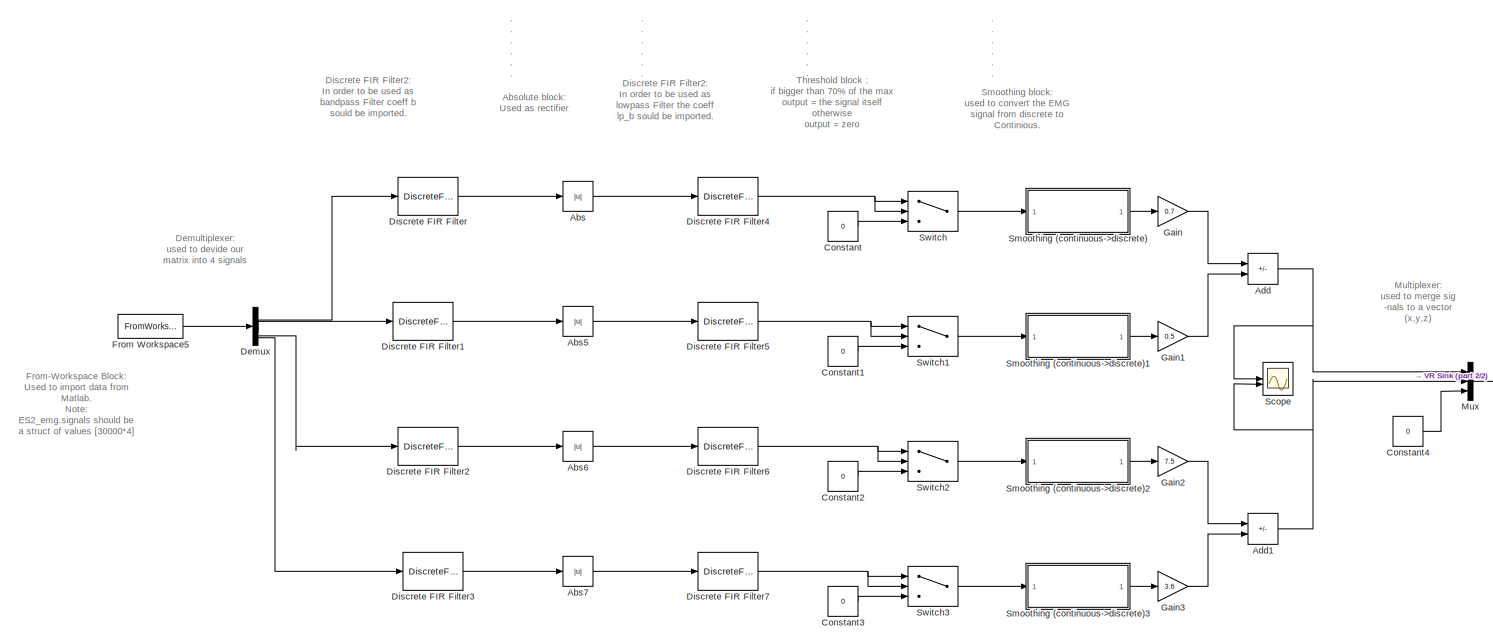
[diagram: root canvas - part 1/2, most of the canvas]
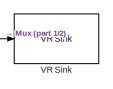
[diagram: root canvas - part 2/2, middle right region]
MODEL slx_cad3455d4116
KIND model
CONFIG AbsTol = auto
CONFIG EnableMultiTasking = off
CONFIG FixedStep = auto
CONFIG MaxStep = auto
CONFIG MinStep = auto
CONFIG RelTol = 1e-3
CONFIG SampleTimeConstraint = Unconstrained
CONFIG SolverName = VariableStepAuto
CONFIG StartTime = 0.0
CONFIG StopTime = 30.0
BLOCK [Abs] Abs
  OutDataTypeStr = double
  SaturateOnIntegerOverflow = off
  ZeroCross = off
BLOCK [Abs] Abs5
  OutDataTypeStr = double
  SaturateOnIntegerOverflow = off
  ZeroCross = off
BLOCK [Abs] Abs6
  OutDataTypeStr = double
  SaturateOnIntegerOverflow = off
  ZeroCross = off
BLOCK [Abs] Abs7
  OutDataTypeStr = double
  SaturateOnIntegerOverflow = off
  ZeroCross = off
BLOCK [Sum] Add
  IconShape = rectangular
  Inputs = +-
BLOCK [Sum] Add1
  IconShape = rectangular
  Inputs = +-
BLOCK [Constant] Constant
  Value = 0
BLOCK [Constant] Constant1
  Value = 0
BLOCK [Constant] Constant2
  Value = 0
BLOCK [Constant] Constant3
  Value = 0
BLOCK [Constant] Constant4
  Value = 0
BLOCK [Demux] Demux
BLOCK [DiscreteFir] Discrete FIR Filter
  Coefficients = b
  InputPortMap = u0
  OutputPortMap = o0
  SampleTime = 1/1000
BLOCK [DiscreteFir] Discrete FIR Filter1
  Coefficients = b
  InputPortMap = u0
  OutputPortMap = o0
  SampleTime = 1/1000
BLOCK [DiscreteFir] Discrete FIR Filter2
  Coefficients = b
  InputPortMap = u0
  OutputPortMap = o0
  SampleTime = 1/1000
BLOCK [DiscreteFir] Discrete FIR Filter3
  Coefficients = b
  InputPortMap = u0
  OutputPortMap = o0
  SampleTime = 1/1000
BLOCK [DiscreteFir] Discrete FIR Filter4
  Coefficients = lp_b
  InputPortMap = u0
  OutputPortMap = o0
  SampleTime = 1/1000
BLOCK [DiscreteFir] Discrete FIR Filter5
  Coefficients = lp_b
  InputPortMap = u0
  OutputPortMap = o0
  SampleTime = 1/1000
BLOCK [DiscreteFir] Discrete FIR Filter6
  Coefficients = lp_b
  InputPortMap = u0
  OutputPortMap = o0
  SampleTime = 1/1000
BLOCK [DiscreteFir] Discrete FIR Filter7
  Coefficients = lp_b
  InputPortMap = u0
  OutputPortMap = o0
  SampleTime = 1/1000
BLOCK [FromWorkspace] From Workspace5
  SampleTime = 1/1000
  VariableName = ES2_emg
BLOCK [Gain] Gain
  Gain = 0.7
BLOCK [Gain] Gain1
  Gain = 0.5
BLOCK [Gain] Gain2
  Gain = 7.5
BLOCK [Gain] Gain3
  Gain = 3.6
BLOCK [Mux] Mux
  DisplayOption = bar
  Inputs = 3
BLOCK [Scope] Scope
  Floating = off
  NumInputPorts = 2
  ScopeSpecificationString = Simulink.scopes.TimeScopeBlockCfg('CurrentConfiguration', extmgr.ConfigurationSet(extmgr.Configuration('Core','General UI',true),extmgr.Configuration('Core','Source UI',true),extmgr.Configuration('Sources','WiredSimulink',true),extmgr.Configuration('Visuals','Time Domain',true,'SerializedDisplays',{struct('MinYLimReal','-0.14234','MaxYLimReal','0.13391','YLabelReal','','MinYLimMag','0.00000','MaxY...<+2010ch>
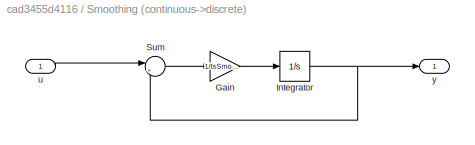
BLOCK [SubSystem] Smoothing (continuous->discrete)
BLOCK [Gain] Smoothing (continuous->discrete)/Gain
  Gain = 1/tsSmoothing
BLOCK [Integrator] Smoothing (continuous->discrete)/Integrator
  InitialCondition = smoothing0
BLOCK [Sum] Smoothing (continuous->discrete)/Sum
  Inputs = |+-
BLOCK [Inport] Smoothing (continuous->discrete)/u
BLOCK [Outport] Smoothing (continuous->discrete)/y
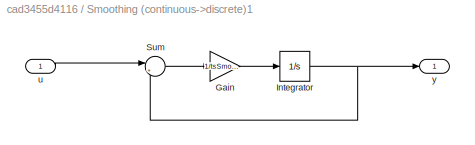
BLOCK [SubSystem] Smoothing (continuous->discrete)1
BLOCK [Gain] Smoothing (continuous->discrete)1/Gain
  Gain = 1/tsSmoothing
BLOCK [Integrator] Smoothing (continuous->discrete)1/Integrator
  InitialCondition = smoothing0
BLOCK [Sum] Smoothing (continuous->discrete)1/Sum
  Inputs = |+-
BLOCK [Inport] Smoothing (continuous->discrete)1/u
BLOCK [Outport] Smoothing (continuous->discrete)1/y
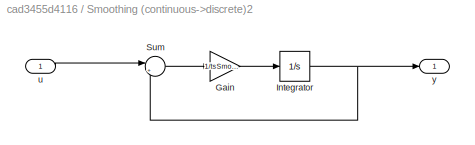
BLOCK [SubSystem] Smoothing (continuous->discrete)2
BLOCK [Gain] Smoothing (continuous->discrete)2/Gain
  Gain = 1/tsSmoothing
BLOCK [Integrator] Smoothing (continuous->discrete)2/Integrator
  InitialCondition = smoothing0
BLOCK [Sum] Smoothing (continuous->discrete)2/Sum
  Inputs = |+-
BLOCK [Inport] Smoothing (continuous->discrete)2/u
BLOCK [Outport] Smoothing (continuous->discrete)2/y
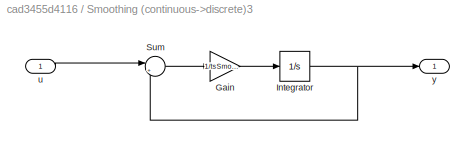
BLOCK [SubSystem] Smoothing (continuous->discrete)3
BLOCK [Gain] Smoothing (continuous->discrete)3/Gain
  Gain = 1/tsSmoothing
BLOCK [Integrator] Smoothing (continuous->discrete)3/Integrator
  InitialCondition = smoothing0
BLOCK [Sum] Smoothing (continuous->discrete)3/Sum
  Inputs = |+-
BLOCK [Inport] Smoothing (continuous->discrete)3/u
BLOCK [Outport] Smoothing (continuous->discrete)3/y
BLOCK [Switch] Switch
  Criteria = u2 > Threshold
  InputSameDT = off
  SaturateOnIntegerOverflow = off
  Threshold = 5e-4
BLOCK [Switch] Switch1
  Criteria = u2 > Threshold
  InputSameDT = off
  SaturateOnIntegerOverflow = off
  Threshold = 5e-4
BLOCK [Switch] Switch2
  Criteria = u2 > Threshold
  InputSameDT = off
  SaturateOnIntegerOverflow = off
  Threshold = 0.2
BLOCK [Switch] Switch3
  Criteria = u2 > Threshold
  InputSameDT = off
  SaturateOnIntegerOverflow = off
  Threshold = 0.08
BLOCK [Reference] VR Sink  REF=vrlib/VR Sink
  InstantiateOnLoad = on
  SourceBlock = vrlib/VR Sink
  SourceType = Virtual Reality Sink
ANNOTATION (root): . . . . . . . . . . . . . . . . . . . . . . . . . . . . . . . . . . . . . . . . . . . . . . .
ANNOTATION (root): Absolute block: Used as rectifier
ANNOTATION (root): Demultiplexer: used to devide our matrix into 4 signals
ANNOTATION (root): Discrete FIR Filter2: In order to be used as bandpass Filter coeff b sould be imported.
ANNOTATION (root): Discrete FIR Filter2: In order to be used as lowpass Filter the coeff lp_b sould be imported.
ANNOTATION (root): From-Workspace Block: Used to import data from Matlab. Note: ES2_emg.signals should be a struct of values [30000*4]
ANNOTATION (root): Multiplexer: used to merge sig -nals to a vector (x,y,z)
ANNOTATION (root): Smoothing block: used to convert the EMG signal from discrete to Continious.
ANNOTATION (root): Threshold block : if bigger than 70% of the max output = the signal itself otherwise output = zero
LINE Abs5:1 -> Discrete FIR Filter5:1
LINE Abs6:1 -> Discrete FIR Filter6:1
LINE Abs7:1 -> Discrete FIR Filter7:1
LINE Abs:1 -> Discrete FIR Filter4:1
NET Add1:1 -> Mux:2, Scope:2
NET Add:1 -> Mux:1, Scope:1
LINE Constant1:1 -> Switch1:3
LINE Constant2:1 -> Switch2:3
LINE Constant3:1 -> Switch3:3
LINE Constant4:1 -> Mux:3
LINE Constant:1 -> Switch:3
LINE Demux:1 -> Discrete FIR Filter:1
LINE Demux:2 -> Discrete FIR Filter1:1
LINE Demux:3 -> Discrete FIR Filter2:1
LINE Demux:4 -> Discrete FIR Filter3:1
LINE Discrete FIR Filter1:1 -> Abs5:1
LINE Discrete FIR Filter2:1 -> Abs6:1
LINE Discrete FIR Filter3:1 -> Abs7:1
NET Discrete FIR Filter4:1 -> Switch:1, Switch:2
NET Discrete FIR Filter5:1 -> Switch1:1, Switch1:2
NET Discrete FIR Filter6:1 -> Switch2:1, Switch2:2
NET Discrete FIR Filter7:1 -> Switch3:1, Switch3:2
LINE Discrete FIR Filter:1 -> Abs:1
LINE From Workspace5:1 -> Demux:1
LINE Gain1:1 -> Add:2
LINE Gain2:1 -> Add1:1
LINE Gain3:1 -> Add1:2
LINE Gain:1 -> Add:1
LINE Mux:1 -> VR Sink:1
LINE Smoothing (continuous->discrete)/Gain:1 -> Smoothing (continuous->discrete)/Integrator:1
NET Smoothing (continuous->discrete)/Integrator:1 -> Smoothing (continuous->discrete)/Sum:2, Smoothing (continuous->discrete)/y:1
LINE Smoothing (continuous->discrete)/Sum:1 -> Smoothing (continuous->discrete)/Gain:1
LINE Smoothing (continuous->discrete)/u:1 -> Smoothing (continuous->discrete)/Sum:1
LINE Smoothing (continuous->discrete)1/Gain:1 -> Smoothing (continuous->discrete)1/Integrator:1
NET Smoothing (continuous->discrete)1/Integrator:1 -> Smoothing (continuous->discrete)1/Sum:2, Smoothing (continuous->discrete)1/y:1
LINE Smoothing (continuous->discrete)1/Sum:1 -> Smoothing (continuous->discrete)1/Gain:1
LINE Smoothing (continuous->discrete)1/u:1 -> Smoothing (continuous->discrete)1/Sum:1
LINE Smoothing (continuous->discrete)1:1 -> Gain1:1
LINE Smoothing (continuous->discrete)2/Gain:1 -> Smoothing (continuous->discrete)2/Integrator:1
NET Smoothing (continuous->discrete)2/Integrator:1 -> Smoothing (continuous->discrete)2/Sum:2, Smoothing (continuous->discrete)2/y:1
LINE Smoothing (continuous->discrete)2/Sum:1 -> Smoothing (continuous->discrete)2/Gain:1
LINE Smoothing (continuous->discrete)2/u:1 -> Smoothing (continuous->discrete)2/Sum:1
LINE Smoothing (continuous->discrete)2:1 -> Gain2:1
LINE Smoothing (continuous->discrete)3/Gain:1 -> Smoothing (continuous->discrete)3/Integrator:1
NET Smoothing (continuous->discrete)3/Integrator:1 -> Smoothing (continuous->discrete)3/Sum:2, Smoothing (continuous->discrete)3/y:1
LINE Smoothing (continuous->discrete)3/Sum:1 -> Smoothing (continuous->discrete)3/Gain:1
LINE Smoothing (continuous->discrete)3/u:1 -> Smoothing (continuous->discrete)3/Sum:1
LINE Smoothing (continuous->discrete)3:1 -> Gain3:1
LINE Smoothing (continuous->discrete):1 -> Gain:1
LINE Switch1:1 -> Smoothing (continuous->discrete)1:1
LINE Switch2:1 -> Smoothing (continuous->discrete)2:1
LINE Switch3:1 -> Smoothing (continuous->discrete)3:1
LINE Switch:1 -> Smoothing (continuous->discrete):1
note: NET lines group one-source signal fan-out (src -> all destinations, sorted); 1:1 wires keep LINE
